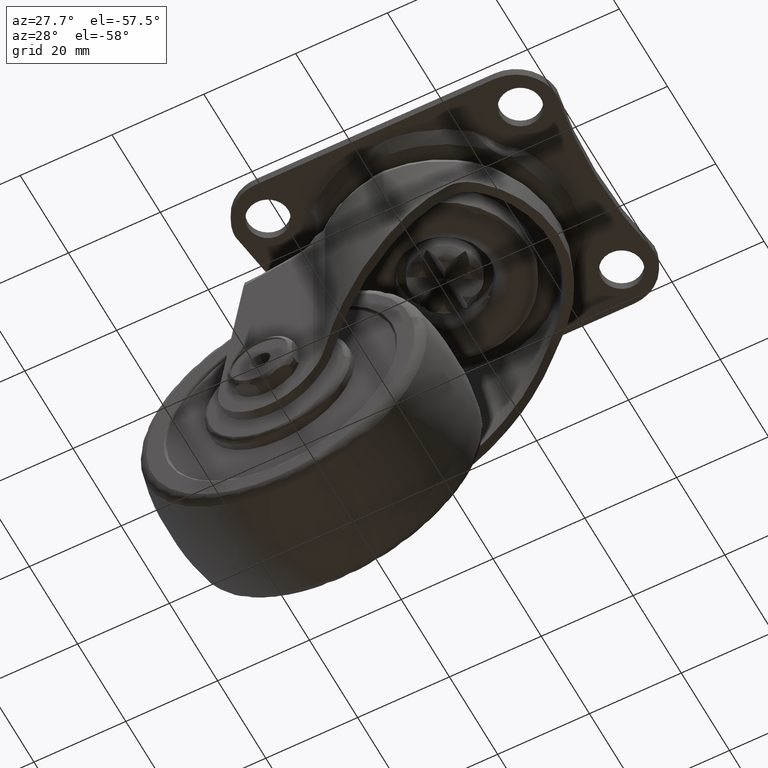
[diagram: clean part render]
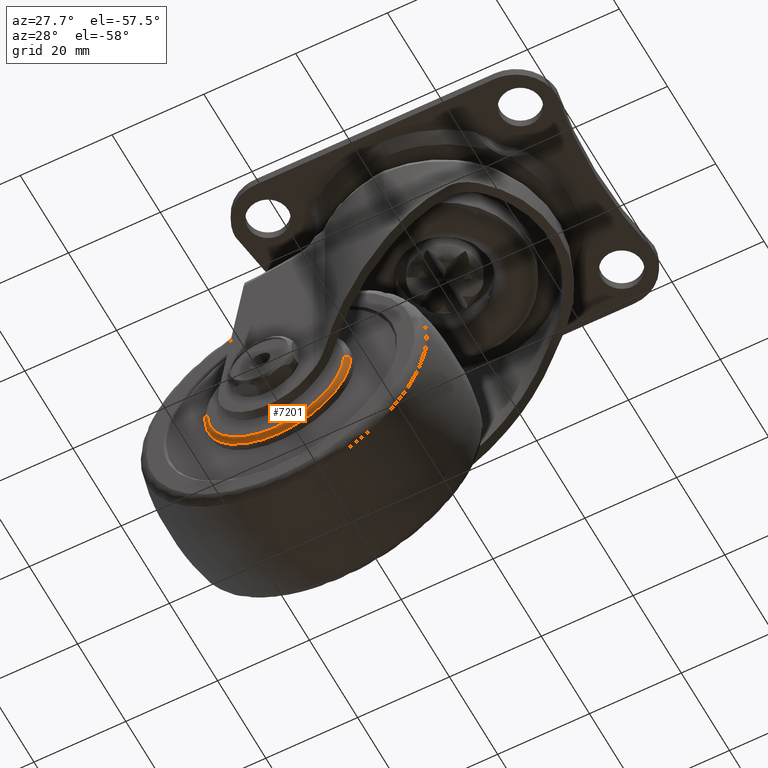
[diagram: same view with one face highlighted and labeled with its STEP entity id]
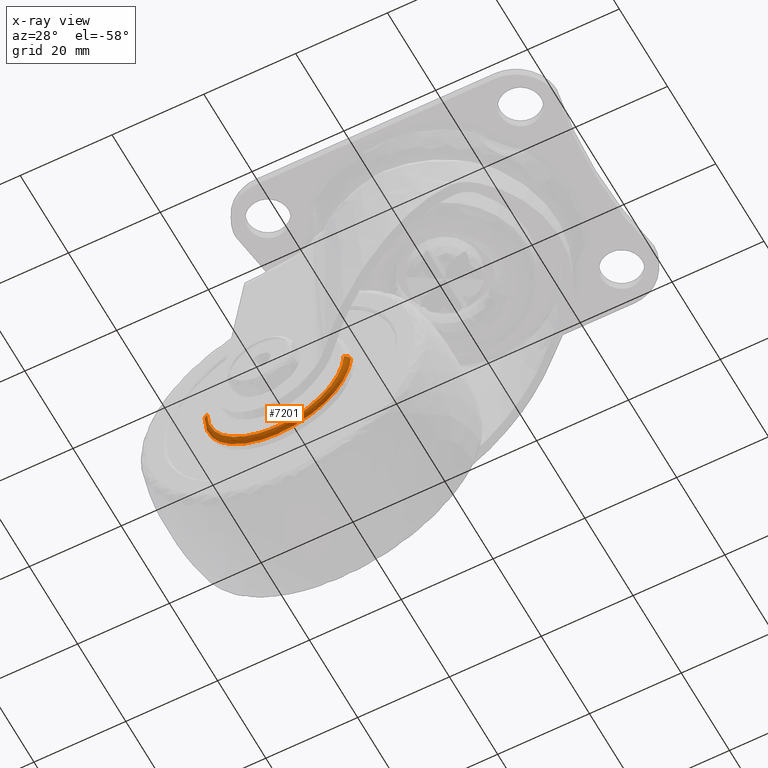
[diagram: x-ray of the same camera — body ghosted, the highlighted face saturated]
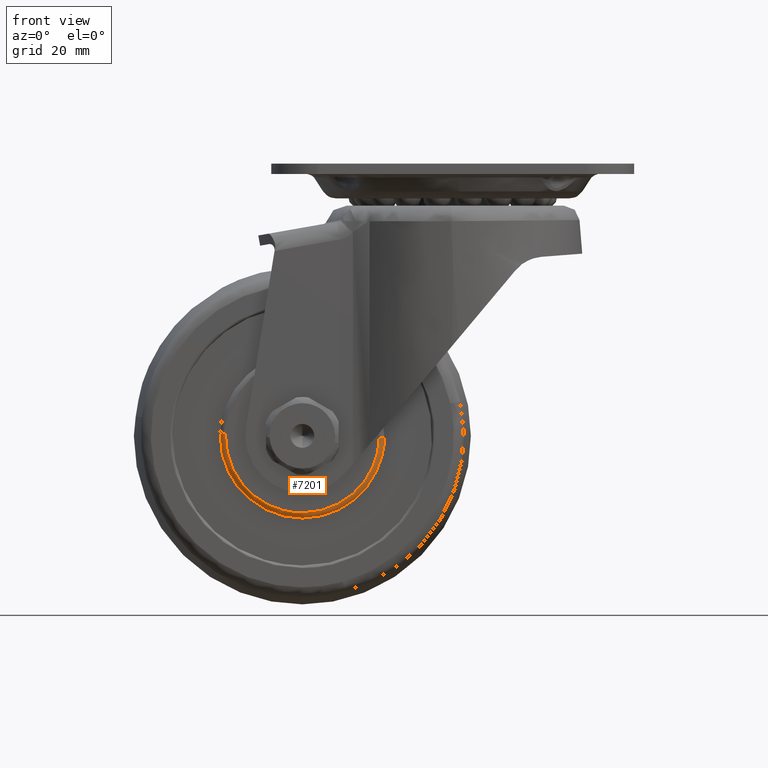
[diagram: same view with one face highlighted and labeled with its STEP entity id]
A machine part, auxiliary view. The second image highlights one B-rep face of the part: STEP entity #7201.
The next image is the same camera in x-ray: the body ghosted, the highlighted face saturated — about 0% of this face is hidden behind the body in this view.
A second angle (front view) of the same face is appended — the face is thin or edge-on in the first view.
In plain terms, the highlighted face is a freeform B-spline surface patch.
Its self-contained STEP definition (entity closure, byte-faithful):
#5931=CARTESIAN_POINT('',(-13.155007599230180,-14.000000000571550,-52.898305962598378));
#5932=VERTEX_POINT('',#5931);
#5948=CARTESIAN_POINT('',(-29.0,-14.0,-68.349992999999998));
#5949=VERTEX_POINT('',#5948);
#5950=CARTESIAN_POINT('',(-29.0,-14.0,-68.349992999999998));
#5951=CARTESIAN_POINT('',(-13.543432137636405,-14.000000000285775,-68.349992987434959));
#5952=CARTESIAN_POINT('',(-13.155007599230185,-14.000000000571550,-52.898305962598386));
#5960=(BOUNDED_CURVE()B_SPLINE_CURVE(2,(#5950,#5951,#5952),.UNSPECIFIED.,.F.,.U.)B_SPLINE_CURVE_WITH_KNOTS((3,3),(0.0,0.245579891768906),.UNSPECIFIED.)CURVE()GEOMETRIC_REPRESENTATION_ITEM()RATIONAL_B_SPLINE_CURVE((1.0,0.712285260095784,0.989826157679538))REPRESENTATION_ITEM(''));
#5961=EDGE_CURVE('',#5949,#5932,#5960,.T.);
#5963=CARTESIAN_POINT('',(-39.371282338667100,-14.000000000252030,-64.485775848202991));
#5964=VERTEX_POINT('',#5963);
#5965=CARTESIAN_POINT('',(-39.371282338667108,-14.000000000252030,-64.485775848202991));
#5966=CARTESIAN_POINT('',(-34.905521627940473,-14.000000000103839,-68.349993004565391));
#5967=CARTESIAN_POINT('',(-29.0,-14.0,-68.349992999999998));
#5975=(BOUNDED_CURVE()B_SPLINE_CURVE(2,(#5965,#5966,#5967),.UNSPECIFIED.,.F.,.U.)B_SPLINE_CURVE_WITH_KNOTS((3,3),(0.885882128774393,1.0),.UNSPECIFIED.)CURVE()GEOMETRIC_REPRESENTATION_ITEM()RATIONAL_B_SPLINE_CURVE((0.854663298683079,0.866302597490372,1.0))REPRESENTATION_ITEM(''));
#5976=EDGE_CURVE('',#5964,#5949,#5975,.T.);
#6020=CARTESIAN_POINT('',(-44.844992400769819,-14.000000000571550,-52.101682037401631));
#6021=VERTEX_POINT('',#6020);
#6022=CARTESIAN_POINT('',(-44.844992400769826,-14.000000000571550,-52.101682037401631));
#6023=CARTESIAN_POINT('',(-44.849998006441368,-14.000000000568049,-52.300806578346737));
#6024=CARTESIAN_POINT('',(-44.849998012722892,-14.000000000564460,-52.499994024818221));
#6025=CARTESIAN_POINT('',(-44.849998241201384,-14.000000000433833,-59.745049419214631));
#6026=CARTESIAN_POINT('',(-39.371282338667100,-14.000000000252031,-64.485775848202991));
#6034=(BOUNDED_CURVE()B_SPLINE_CURVE(2,(#6022,#6023,#6024,#6025,#6026),.UNSPECIFIED.,.F.,.U.)B_SPLINE_CURVE_WITH_KNOTS((3,2,3),(0.745579891768906,0.750000000000000,0.885882128774393),.UNSPECIFIED.)CURVE()GEOMETRIC_REPRESENTATION_ITEM()RATIONAL_B_SPLINE_CURVE((0.989826157679538,0.994821521090764,1.0,0.840804183696176,0.854663298683078))REPRESENTATION_ITEM(''));
#6035=EDGE_CURVE('',#6021,#5964,#6034,.T.);
#7113=CARTESIAN_POINT('',(-44.842558474551090,-13.930275776267303,-52.101743221604124));
#7114=CARTESIAN_POINT('',(-45.240809252946981,-13.930275776267303,-67.944301696155208));
#7115=CARTESIAN_POINT('',(-29.398250778395877,-13.930275776267303,-68.342552474551113));
#7116=CARTESIAN_POINT('',(-13.555692303844792,-13.930275776267303,-68.740803252947003));
#7117=CARTESIAN_POINT('',(-13.157441525448906,-13.930275776267303,-52.898244778395878));
#7118=CARTESIAN_POINT('',(-44.922706199796771,-15.077336635789431,-52.099728465337506));
#7119=CARTESIAN_POINT('',(-45.322971734459244,-15.077336635789434,-68.022434665134284));
#7120=CARTESIAN_POINT('',(-29.400265534662491,-15.077336635789431,-68.422700199796765));
#7121=CARTESIAN_POINT('',(-13.477559334865729,-15.077336635789434,-68.822965734459274));
#7122=CARTESIAN_POINT('',(-13.077293800203236,-15.077336635789431,-52.900259534662496));
#7123=CARTESIAN_POINT('',(-43.775977720448786,-14.997592293600785,-52.128554965188712));
#7124=CARTESIAN_POINT('',(-44.147416755260089,-14.997592293600785,-66.904532685637477));
#7125=CARTESIAN_POINT('',(-29.371439034811306,-14.997592293600785,-67.275971720448766));
#7126=CARTESIAN_POINT('',(-14.595461314362529,-14.997592293600785,-67.647410755260097));
#7127=CARTESIAN_POINT('',(-14.224022279551226,-14.997592293600785,-52.871433034811304));
#7135=(BOUNDED_SURFACE()B_SPLINE_SURFACE(2,2,((#7113,#7118,#7123),(#7114,#7119,#7124),(#7115,#7120,#7125),(#7116,#7121,#7126),(#7117,#7122,#7127)),.UNSPECIFIED.,.F.,.F.,.U.)B_SPLINE_SURFACE_WITH_KNOTS((3,2,3),(3,3),(0.0,26.257102605783921,52.514205211567827),(0.0,1.822371363698750),.UNSPECIFIED.)GEOMETRIC_REPRESENTATION_ITEM()RATIONAL_B_SPLINE_SURFACE(((0.910892957557961,0.599412755929251,0.915966966779733),(0.644098587224304,0.423848824447290,0.647686453552822),(0.910892957557961,0.599412755929251,0.915966966779733),(0.644098587224304,0.423848824447290,0.647686453552822),(0.910892957557961,0.599412755929251,0.915966966779733)))REPRESENTATION_ITEM('')SURFACE());
#7136=ORIENTED_EDGE('',*,*,#6035,.T.);
#7137=ORIENTED_EDGE('',*,*,#5976,.T.);
#7138=ORIENTED_EDGE('',*,*,#5961,.T.);
#7139=CARTESIAN_POINT('',(-14.154691819584709,-14.999999999999529,-52.873175866895743));
#7140=VERTEX_POINT('',#7139);
#7141=CARTESIAN_POINT('',(-13.155007599230180,-14.000000000571557,-52.898305962598378));
#7142=CARTESIAN_POINT('',(-13.155008107276711,-14.999999015810578,-52.898305950087980));
#7143=CARTESIAN_POINT('',(-14.154691819584707,-14.999999999999529,-52.873175866895743));
#7151=(BOUNDED_CURVE()B_SPLINE_CURVE(2,(#7141,#7142,#7143),.UNSPECIFIED.,.F.,.U.)B_SPLINE_CURVE_WITH_KNOTS((3,3),(-1.723441281396306,-0.263587897527794),.UNSPECIFIED.)CURVE()GEOMETRIC_REPRESENTATION_ITEM()RATIONAL_B_SPLINE_CURVE((0.883897566931264,0.626638906843085,0.888510043625695))REPRESENTATION_ITEM(''));
#7152=EDGE_CURVE('',#5932,#7140,#7151,.T.);
#7153=ORIENTED_EDGE('',*,*,#7152,.T.);
#7154=CARTESIAN_POINT('',(-29.0,-14.999999999999540,-67.349991953674220));
#7155=VERTEX_POINT('',#7154);
#7156=CARTESIAN_POINT('',(-29.0,-14.999999999999540,-67.349991953674220));
#7157=CARTESIAN_POINT('',(-14.518610535425996,-14.999999999999545,-67.349991953674220));
#7158=CARTESIAN_POINT('',(-14.154691819584713,-14.999999999999529,-52.873175866895735));
#7166=(BOUNDED_CURVE()B_SPLINE_CURVE(2,(#7156,#7157,#7158),.UNSPECIFIED.,.F.,.U.)B_SPLINE_CURVE_WITH_KNOTS((3,3),(0.0,0.245579891755590),.UNSPECIFIED.)CURVE()GEOMETRIC_REPRESENTATION_ITEM()RATIONAL_B_SPLINE_CURVE((1.0,0.712285260111384,0.989826157649441))REPRESENTATION_ITEM(''));
#7167=EDGE_CURVE('',#7155,#7140,#7166,.T.);
#7168=ORIENTED_EDGE('',*,*,#7167,.F.);
#7169=CARTESIAN_POINT('',(-43.845308180415287,-14.999999999999529,-52.126812133104274));
#7170=VERTEX_POINT('',#7169);
#7171=CARTESIAN_POINT('',(-43.845308180415287,-14.999999999999526,-52.126812133104274));
#7172=CARTESIAN_POINT('',(-43.849997953674219,-14.999999999999538,-52.313373598080659));
#7173=CARTESIAN_POINT('',(-43.849997953674233,-14.999999999999540,-52.499994000000001));
#7174=CARTESIAN_POINT('',(-43.849997953674233,-14.999999999999545,-67.349991953674220));
#7175=CARTESIAN_POINT('',(-29.0,-14.999999999999540,-67.349991953674220));
#7183=(BOUNDED_CURVE()B_SPLINE_CURVE(2,(#7171,#7172,#7173,#7174,#7175),.UNSPECIFIED.,.F.,.U.)B_SPLINE_CURVE_WITH_KNOTS((3,2,3),(0.745579891755590,0.750000000000000,1.0),.UNSPECIFIED.)CURVE()GEOMETRIC_REPRESENTATION_ITEM()RATIONAL_B_SPLINE_CURVE((0.989826157649441,0.994821521075164,1.0,0.707106781186547,1.0))REPRESENTATION_ITEM(''));
#7184=EDGE_CURVE('',#7170,#7155,#7183,.T.);
#7185=ORIENTED_EDGE('',*,*,#7184,.F.);
#7186=CARTESIAN_POINT('',(-44.844992400769819,-14.000000000571548,-52.101682037401623));
#7187=CARTESIAN_POINT('',(-44.844991892723286,-14.999999015810577,-52.101682049912050));
#7188=CARTESIAN_POINT('',(-43.845308180415287,-14.999999999999533,-52.126812133104274));
#7196=(BOUNDED_CURVE()B_SPLINE_CURVE(2,(#7186,#7187,#7188),.UNSPECIFIED.,.F.,.U.)B_SPLINE_CURVE_WITH_KNOTS((3,3),(-1.723441281396303,-0.263587897527793),.UNSPECIFIED.)CURVE()GEOMETRIC_REPRESENTATION_ITEM()RATIONAL_B_SPLINE_CURVE((0.883897566931263,0.626638906843086,0.888510043625695))REPRESENTATION_ITEM(''));
#7197=EDGE_CURVE('',#6021,#7170,#7196,.T.);
#7198=ORIENTED_EDGE('',*,*,#7197,.F.);
#7199=EDGE_LOOP('',(#7136,#7137,#7138,#7153,#7168,#7185,#7198));
#7200=FACE_OUTER_BOUND('',#7199,.T.);
#7201=ADVANCED_FACE('',(#7200),#7135,.T.);